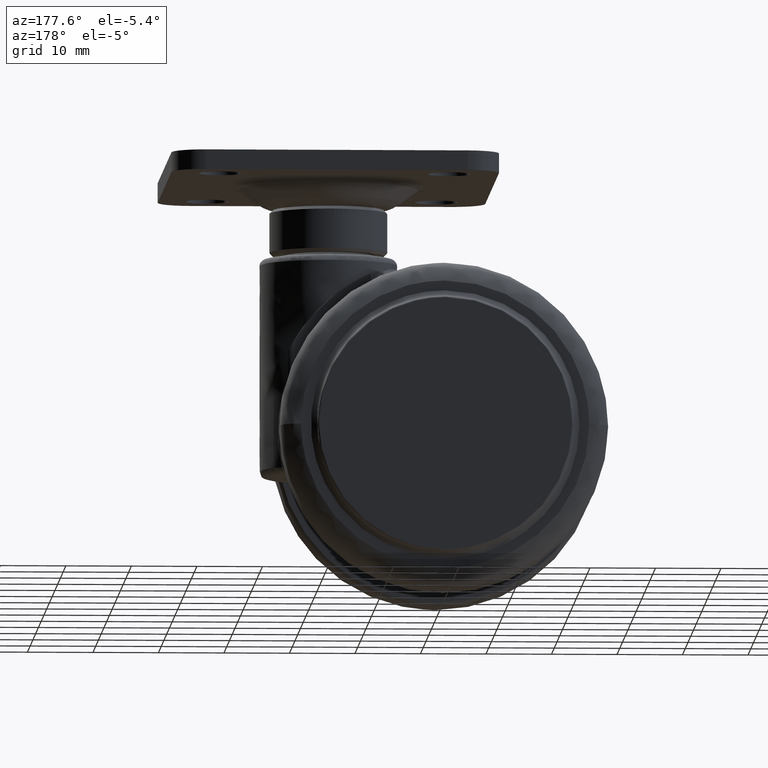
[diagram: clean part render]
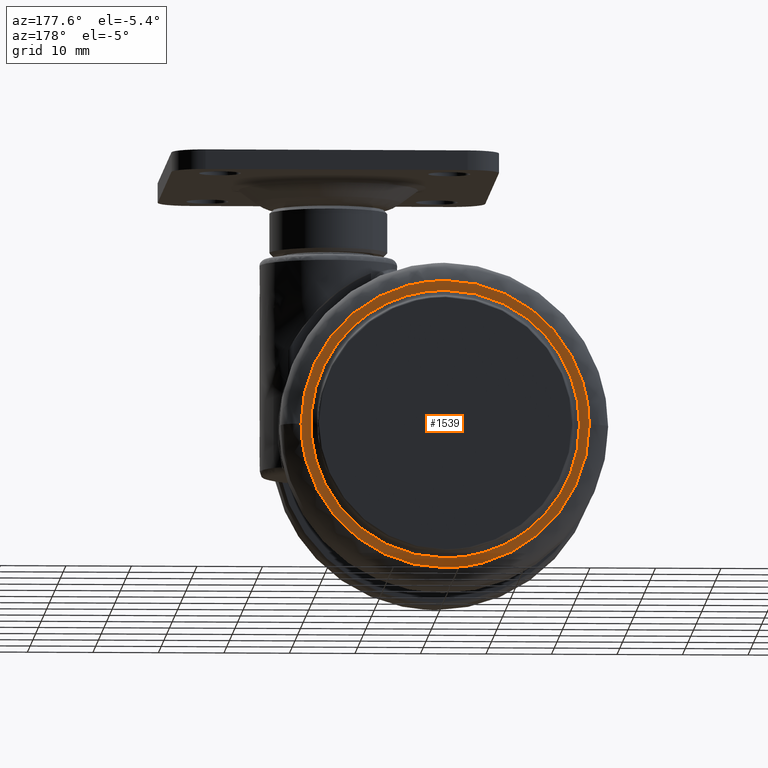
[diagram: same view with one face highlighted and labeled with its STEP entity id]
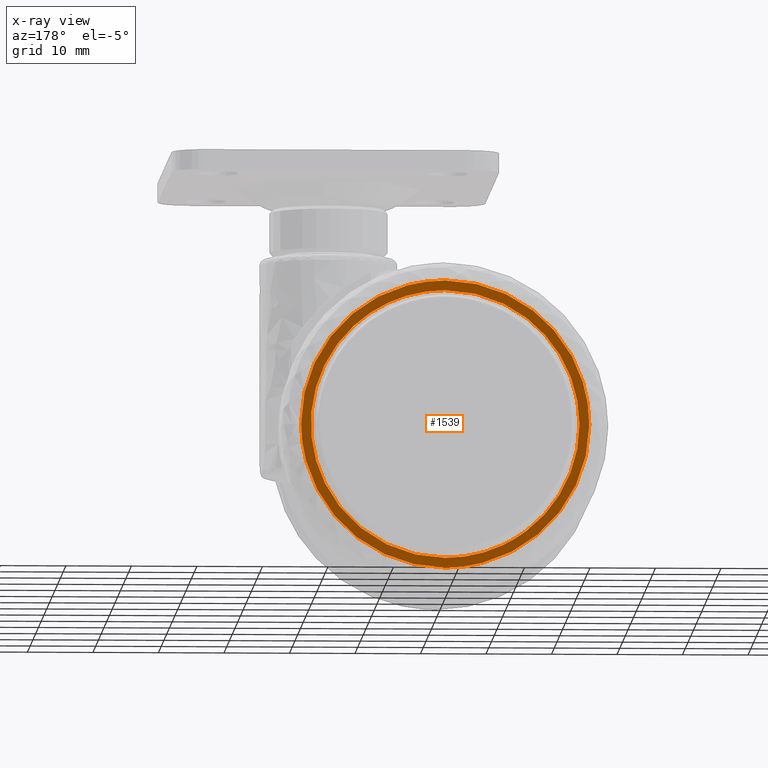
[diagram: x-ray of the same camera — body ghosted, the highlighted face saturated]
A machine part, auxiliary view. The second image highlights one B-rep face of the part: STEP entity #1539.
The next image is the same camera in x-ray: the body ghosted, the highlighted face saturated — about 0% of this face is hidden behind the body in this view.
In plain terms, the highlighted face is a freeform B-spline surface patch.
Its self-contained STEP definition (entity closure, byte-faithful):
#1304=CARTESIAN_POINT('',(22.000000000316810,20.0,-1.770490E-015));
#1305=VERTEX_POINT('',#1304);
#1319=CARTESIAN_POINT('',(2.449213E-015,20.0,22.0));
#1320=VERTEX_POINT('',#1319);
#1321=CARTESIAN_POINT('',(22.000000000316810,20.0,-1.770490E-015));
#1322=CARTESIAN_POINT('',(22.000239336480149,20.000000000000011,1.529910050161164));
#1323=CARTESIAN_POINT('',(21.740760555788910,19.999999999999972,4.004624587056374));
#1324=CARTESIAN_POINT('',(20.853036136858570,20.000000000000028,7.174253638872996));
#1325=CARTESIAN_POINT('',(19.680404603087929,19.999999999999869,10.005490433368150));
#1326=CARTESIAN_POINT('',(18.063037291407412,20.000000000000341,12.722844520959651));
#1327=CARTESIAN_POINT('',(16.182056231606580,19.999999999999488,14.972073783455050));
#1328=CARTESIAN_POINT('',(14.295945747231659,20.000000000000391,16.778876770709910));
#1329=CARTESIAN_POINT('',(12.509791474246150,19.999999999999812,18.155263725566670));
#1330=CARTESIAN_POINT('',(10.157336766540540,20.000000000000071,19.575103506055939));
#1331=CARTESIAN_POINT('',(7.689243093835586,19.999999999999979,20.687338165386421));
#1332=CARTESIAN_POINT('',(5.309515616755675,20.0,21.385313316434178));
#1333=CARTESIAN_POINT('',(2.789768370537151,20.000000000000011,21.870465421911540));
#1334=CARTESIAN_POINT('',(1.169917575206290,19.999999999999989,22.000088434188349));
#1335=CARTESIAN_POINT('',(2.449213E-015,20.0,22.0));
#1336=B_SPLINE_CURVE_WITH_KNOTS('',3,(#1321,#1322,#1323,#1324,#1325,#1326,#1327,#1328,#1329,#1330,#1331,#1332,#1333,#1334,#1335),.UNSPECIFIED.,.F.,.U.,(4,1,1,1,1,1,1,1,1,1,1,1,4),(0.000000035155168,4.589672267726243,7.424476664524441,9.854308720702516,13.769053402985881,16.873844693599590,18.628680813499180,21.598482488012639,23.623331835694412,26.863115679418101,29.697918727194260,31.047838580787570,34.557573400503060),.UNSPECIFIED.);
#1337=EDGE_CURVE('',#1305,#1320,#1336,.T.);
#1339=CARTESIAN_POINT('',(-22.000000000316810,20.0,7.535010E-016));
#1340=VERTEX_POINT('',#1339);
#1341=CARTESIAN_POINT('',(2.449213E-015,20.0,22.0));
#1342=CARTESIAN_POINT('',(-0.989924050865424,19.999999999999979,22.000023390592471));
#1343=CARTESIAN_POINT('',(-3.284770893978892,20.0,21.844933339047682));
#1344=CARTESIAN_POINT('',(-6.500189386517706,20.000000000000082,21.112567214330120));
#1345=CARTESIAN_POINT('',(-9.305779608735618,19.999999999999901,19.990428095104420));
#1346=CARTESIAN_POINT('',(-11.998683770171500,20.000000000000139,18.529869084450180));
#1347=CARTESIAN_POINT('',(-14.503032767733460,20.000000000000099,16.672524287969441));
#1348=CARTESIAN_POINT('',(-16.732607037774379,19.999999999999890,14.373275557962421));
#1349=CARTESIAN_POINT('',(-18.600298090861578,19.999999999999901,11.887141927381940));
#1350=CARTESIAN_POINT('',(-20.015789692843139,19.999999999999961,9.315373595815492));
#1351=CARTESIAN_POINT('',(-21.124114257995711,19.999999999999940,6.361289510315853));
#1352=CARTESIAN_POINT('',(-21.823713518485839,20.000000000000060,3.374730602127352));
#1353=CARTESIAN_POINT('',(-22.000076827705559,19.999999999999989,1.169914540784830));
#1354=CARTESIAN_POINT('',(-22.000000000316810,20.0,7.535010E-016));
#1355=B_SPLINE_CURVE_WITH_KNOTS('',3,(#1341,#1342,#1343,#1344,#1345,#1346,#1347,#1348,#1349,#1350,#1351,#1352,#1353,#1354),.UNSPECIFIED.,.F.,.U.,(4,1,1,1,1,1,1,1,1,1,1,4),(0.000000035157932,2.969782952730380,6.884515261622763,9.854308720703518,12.014169211966831,16.063887692649249,19.168651389942859,21.598482488013929,25.378215811059381,27.943039216193430,31.047838580788341,34.557573400503813),.UNSPECIFIED.);
#1356=EDGE_CURVE('',#1320,#1340,#1355,.T.);
#1408=CARTESIAN_POINT('',(2.449213E-015,20.0,-22.0));
#1409=VERTEX_POINT('',#1408);
#1410=CARTESIAN_POINT('',(-22.000000000316810,20.0,7.535010E-016));
#1411=CARTESIAN_POINT('',(-22.000041507625902,20.000000000000021,-0.989928178572070));
#1412=CARTESIAN_POINT('',(-21.875258909311821,20.0,-2.834777094507320));
#1413=CARTESIAN_POINT('',(-21.277960117464001,20.000000000000028,-5.886951743331793));
#1414=CARTESIAN_POINT('',(-20.305985581350448,19.999999999999879,-8.656954212719494));
#1415=CARTESIAN_POINT('',(-18.894588705038050,20.000000000000188,-11.377052528070241));
#1416=CARTESIAN_POINT('',(-17.134223484910219,19.999999999999719,-13.943134429518519));
#1417=CARTESIAN_POINT('',(-14.743407090561851,20.000000000000359,-16.469761888043291));
#1418=CARTESIAN_POINT('',(-12.000435044419810,19.999999999999361,-18.530209218216608));
#1419=CARTESIAN_POINT('',(-9.191031972588883,20.000000000000490,-20.065252271115121));
#1420=CARTESIAN_POINT('',(-6.195233388474935,19.999999999999812,-21.199851846825482));
#1421=CARTESIAN_POINT('',(-3.059771210287881,20.000000000000089,-21.863590405518622));
#1422=CARTESIAN_POINT('',(-0.944924064241454,19.999999999999989,-22.000022085919021));
#1423=CARTESIAN_POINT('',(2.449213E-015,20.0,-22.0));
#1424=B_SPLINE_CURVE_WITH_KNOTS('',3,(#1410,#1411,#1412,#1413,#1414,#1415,#1416,#1417,#1418,#1419,#1420,#1421,#1422,#1423),.UNSPECIFIED.,.F.,.U.,(4,1,1,1,1,1,1,1,1,1,1,4),(0.000000035158877,2.969782952731020,5.534599263972208,9.314347010459265,11.744182936853390,14.713971535912920,18.628680813499120,22.138441392236150,24.973244440012639,28.213028283736371,31.722795385608670,34.557573400503053),.UNSPECIFIED.);
#1425=EDGE_CURVE('',#1340,#1409,#1424,.T.);
#1427=CARTESIAN_POINT('',(2.449213E-015,20.0,-22.0));
#1428=CARTESIAN_POINT('',(1.349911426890764,20.000000000000060,-22.000143352882478));
#1429=CARTESIAN_POINT('',(3.959679782761877,19.999999999999911,-21.759051884804371));
#1430=CARTESIAN_POINT('',(7.311256132161455,20.000000000000071,-20.831554821543062));
#1431=CARTESIAN_POINT('',(10.117079376028441,20.000000000000011,-19.598023158970051));
#1432=CARTESIAN_POINT('',(12.364361196462230,19.999999999999790,-18.260410402967469));
#1433=CARTESIAN_POINT('',(14.470445634921070,20.000000000000249,-16.637480067282951));
#1434=CARTESIAN_POINT('',(16.470981460708721,19.999999999999840,-14.685513676820239));
#1435=CARTESIAN_POINT('',(18.275290541877428,20.000000000000060,-12.373522153573470));
#1436=CARTESIAN_POINT('',(19.698115989874360,19.999999999999989,-9.914837471514357));
#1437=CARTESIAN_POINT('',(20.763431400752680,20.0,-7.429617365750566));
#1438=CARTESIAN_POINT('',(21.715375811491299,19.999999999999989,-4.184583581208549));
#1439=CARTESIAN_POINT('',(22.000316012812139,20.000000000000011,-1.619913287326354));
#1440=CARTESIAN_POINT('',(22.000000000316810,20.0,-1.770490E-015));
#1441=B_SPLINE_CURVE_WITH_KNOTS('',3,(#1427,#1428,#1429,#1430,#1431,#1432,#1433,#1434,#1435,#1436,#1437,#1438,#1439,#1440),.UNSPECIFIED.,.F.,.U.,(4,1,1,1,1,1,1,1,1,1,1,4),(0.000000035158934,4.049713186339371,7.829447436743713,10.394273035771899,13.229087918583771,15.658927250757840,18.358685561303890,21.598482488013090,24.433282171930191,26.863115679418978,29.697918727194971,34.557573400503827),.UNSPECIFIED.);
#1442=EDGE_CURVE('',#1409,#1305,#1441,.T.);
#1448=CARTESIAN_POINT('',(24.197799915067929,20.0,-24.197799914719461));
#1449=CARTESIAN_POINT('',(24.197799915067929,20.0,24.197801094891432));
#1450=CARTESIAN_POINT('',(-24.197801095239889,20.0,-24.197799914719461));
#1451=CARTESIAN_POINT('',(-24.197801095239889,20.0,24.197801094891432));
#1452=B_SPLINE_SURFACE_WITH_KNOTS('',1,1,((#1448,#1450),(#1449,#1451)),.UNSPECIFIED.,.F.,.F.,.U.,(2,2),(2,2),(0.0,48.395601009610893),(0.0,48.395601010307807),.UNSPECIFIED.);
#1453=ORIENTED_EDGE('',*,*,#1337,.F.);
#1454=ORIENTED_EDGE('',*,*,#1442,.F.);
#1455=ORIENTED_EDGE('',*,*,#1425,.F.);
#1456=ORIENTED_EDGE('',*,*,#1356,.F.);
#1457=EDGE_LOOP('',(#1453,#1454,#1455,#1456));
#1458=FACE_OUTER_BOUND('',#1457,.T.);
#1459=CARTESIAN_POINT('',(2.449213E-015,20.0,20.500000000000000));
#1460=VERTEX_POINT('',#1459);
#1461=CARTESIAN_POINT('',(-8.728475475673109,20.0,-18.548954572349359));
#1462=VERTEX_POINT('',#1461);
#1463=CARTESIAN_POINT('',(2.449213E-015,20.0,20.500000000000000));
#1464=CARTESIAN_POINT('',(-0.973572114146117,20.000000000000121,20.500040847466959));
#1465=CARTESIAN_POINT('',(-2.992857984242948,19.999999999999790,20.355914122913060));
#1466=CARTESIAN_POINT('',(-5.710998346376973,20.000000000000110,19.750961029619688));
#1467=CARTESIAN_POINT('',(-8.525838454517484,19.999999999999879,18.720580335616059));
#1468=CARTESIAN_POINT('',(-11.267452438455059,20.000000000000281,17.246373474152819));
#1469=CARTESIAN_POINT('',(-13.830526464301199,19.999999999999460,15.236900571373150));
#1470=CARTESIAN_POINT('',(-15.763182657250089,20.000000000000899,13.185065878556021));
#1471=CARTESIAN_POINT('',(-17.089797789445470,19.999999999998369,11.381292514437090));
#1472=CARTESIAN_POINT('',(-18.252040185106470,20.000000000000661,9.427058950767247));
#1473=CARTESIAN_POINT('',(-19.252119620696291,20.000000000000259,7.221569790296135));
#1474=CARTESIAN_POINT('',(-19.988589471819768,19.999999999999140,4.763809305500834));
#1475=CARTESIAN_POINT('',(-20.378854354711208,20.000000000000469,2.522677463453304));
#1476=CARTESIAN_POINT('',(-20.545454843531289,20.0,0.218339918196025));
#1477=CARTESIAN_POINT('',(-20.440693297463000,19.999999999999179,-2.164843874409680));
#1478=CARTESIAN_POINT('',(-20.035990310218789,20.000000000001709,-4.514136111468803));
#1479=CARTESIAN_POINT('',(-19.396297248505672,19.999999999997819,-6.771725305999540));
#1480=CARTESIAN_POINT('',(-18.394467743483819,20.000000000001251,-9.212126556746583));
#1481=CARTESIAN_POINT('',(-16.975166303021581,19.999999999999460,-11.608615508493990));
#1482=CARTESIAN_POINT('',(-15.243945110706280,20.000000000000099,-13.785316075369710));
#1483=CARTESIAN_POINT('',(-13.617299946141630,19.999999999999812,-15.378164839147200));
#1484=CARTESIAN_POINT('',(-11.461791533528970,20.000000000001279,-17.074437779665960));
#1485=CARTESIAN_POINT('',(-9.870484542852550,19.999999999997481,-18.011729532067591));
#1486=CARTESIAN_POINT('',(-8.728475475673109,20.0,-18.548954572349359));
#1487=B_SPLINE_CURVE_WITH_KNOTS('',3,(#1463,#1464,#1465,#1466,#1467,#1468,#1469,#1470,#1471,#1472,#1473,#1474,#1475,#1476,#1477,#1478,#1479,#1480,#1481,#1482,#1483,#1484,#1485,#1486),.UNSPECIFIED.,.F.,.U.,(4,1,1,1,1,1,1,1,1,1,1,1,1,1,1,1,1,1,1,1,1,4),(0.000000096415768,2.920717419615897,6.057874597274605,8.329564378822248,11.899403045082719,15.361063849341759,18.065487323099660,20.337181246154341,22.068031542055412,24.880597359948059,27.585036575969308,29.748509274384801,31.695681292376140,34.508280659522363,36.888164221775902,38.835334608322952,41.539758146108582,44.785065776179088,47.164955826763830,49.869346198091193,51.600200068192613,55.386342740743643),.UNSPECIFIED.);
#1488=EDGE_CURVE('',#1460,#1462,#1487,.T.);
#1489=ORIENTED_EDGE('',*,*,#1488,.T.);
#1490=CARTESIAN_POINT('',(2.449213E-015,20.0,-20.500000000000000));
#1491=VERTEX_POINT('',#1490);
#1492=CARTESIAN_POINT('',(-8.728475475673109,20.0,-18.548954572349359));
#1493=CARTESIAN_POINT('',(-7.666241480779867,19.999999999999979,-19.048923671891739));
#1494=CARTESIAN_POINT('',(-5.765051384882607,20.000000000000028,-19.751178017585922));
#1495=CARTESIAN_POINT('',(-2.817602683041965,19.999999999999918,-20.367580320991909));
#1496=CARTESIAN_POINT('',(-0.986169630788763,20.000000000000139,-20.500051576310138));
#1497=CARTESIAN_POINT('',(2.449213E-015,20.0,-20.500000000000000));
#1498=B_SPLINE_CURVE_WITH_KNOTS('',3,(#1492,#1493,#1494,#1495,#1496,#1497),.UNSPECIFIED.,.F.,.U.,(4,1,1,4),(2.751280E-009,3.522028584379222,6.057883822961890,9.016388657380842),.UNSPECIFIED.);
#1499=EDGE_CURVE('',#1462,#1491,#1498,.T.);
#1500=ORIENTED_EDGE('',*,*,#1499,.T.);
#1501=CARTESIAN_POINT('',(8.728475475673120,20.0,18.548954572349349));
#1502=VERTEX_POINT('',#1501);
#1503=CARTESIAN_POINT('',(2.449213E-015,20.0,-20.500000000000000));
#1504=CARTESIAN_POINT('',(1.406306020199676,19.999999999999758,-20.500225868465979));
#1505=CARTESIAN_POINT('',(3.533676824061661,20.000000000000210,-20.280184955092849));
#1506=CARTESIAN_POINT('',(6.116899394106348,19.999999999999911,-19.596877631163089));
#1507=CARTESIAN_POINT('',(8.048501611880019,20.000000000000039,-18.889778782701981));
#1508=CARTESIAN_POINT('',(10.359406866232581,19.999999999999911,-17.777832389227520));
#1509=CARTESIAN_POINT('',(12.815779135204901,20.000000000000131,-16.110616416078081));
#1510=CARTESIAN_POINT('',(15.133032927317210,19.999999999999819,-13.931850414529951));
#1511=CARTESIAN_POINT('',(16.712111023660089,19.999999999999950,-11.953840160887481));
#1512=CARTESIAN_POINT('',(18.144532403407840,19.999999999999869,-9.657071580404455));
#1513=CARTESIAN_POINT('',(19.223812442247329,20.000000000000568,-7.326073252765650));
#1514=CARTESIAN_POINT('',(20.149094627827939,19.999999999998710,-4.208668639364332));
#1515=CARTESIAN_POINT('',(20.551966367811559,20.000000000000490,-1.193648272338873));
#1516=CARTESIAN_POINT('',(20.466366054246460,20.000000000000309,2.166032438071908));
#1517=CARTESIAN_POINT('',(19.894501610127278,19.999999999997950,5.336290138407781));
#1518=CARTESIAN_POINT('',(18.859859367849701,20.000000000001169,8.193842514232964));
#1519=CARTESIAN_POINT('',(17.454065687951559,19.999999999999542,10.881585381175610));
#1520=CARTESIAN_POINT('',(15.830735821869879,19.999999999999680,13.147077399926481));
#1521=CARTESIAN_POINT('',(13.864446968784630,20.000000000000551,15.166051732208061));
#1522=CARTESIAN_POINT('',(11.617801437825790,20.000000000000121,16.982554885817621));
#1523=CARTESIAN_POINT('',(9.870485014062245,19.999999999998451,18.011732427564240));
#1524=CARTESIAN_POINT('',(8.728475475673120,20.0,18.548954572349349));
#1525=B_SPLINE_CURVE_WITH_KNOTS('',3,(#1503,#1504,#1505,#1506,#1507,#1508,#1509,#1510,#1511,#1512,#1513,#1514,#1515,#1516,#1517,#1518,#1519,#1520,#1521,#1522,#1523,#1524),.UNSPECIFIED.,.F.,.U.,(4,1,1,1,1,1,1,1,1,1,1,1,1,1,1,1,1,1,1,4),(0.000000096428721,4.218857443835177,6.382407414310436,8.005032637811546,10.384925222028601,14.062940363025790,16.875541347178380,19.904494522144969,21.635304801129969,24.988802743308661,27.585036575972239,31.371149932448748,34.075550391922697,37.645388458267611,40.998874523252809,43.162407564578487,46.732231855838677,49.328489396582391,51.600200068192542,55.386342740743657),.UNSPECIFIED.);
#1526=EDGE_CURVE('',#1491,#1502,#1525,.T.);
#1527=ORIENTED_EDGE('',*,*,#1526,.T.);
#1528=CARTESIAN_POINT('',(8.728475475673120,20.0,18.548954572349349));
#1529=CARTESIAN_POINT('',(7.921157534056035,20.0,18.928870678827241));
#1530=CARTESIAN_POINT('',(6.037839345599119,19.999999999999972,19.669212313043349));
#1531=CARTESIAN_POINT('',(3.099382322918776,20.000000000000060,20.347280811288400));
#1532=CARTESIAN_POINT('',(0.986165568664990,19.999999999999961,20.500034636451311));
#1533=CARTESIAN_POINT('',(2.449213E-015,20.0,20.500000000000000));
#1534=B_SPLINE_CURVE_WITH_KNOTS('',3,(#1528,#1529,#1530,#1531,#1532,#1533),.UNSPECIFIED.,.F.,.U.,(4,1,1,4),(2.751113E-009,2.676740607596000,6.057883822961873,9.016388657380853),.UNSPECIFIED.);
#1535=EDGE_CURVE('',#1502,#1460,#1534,.T.);
#1536=ORIENTED_EDGE('',*,*,#1535,.T.);
#1537=EDGE_LOOP('',(#1489,#1500,#1527,#1536));
#1538=FACE_BOUND('',#1537,.T.);
#1539=ADVANCED_FACE('',(#1458,#1538),#1452,.F.);